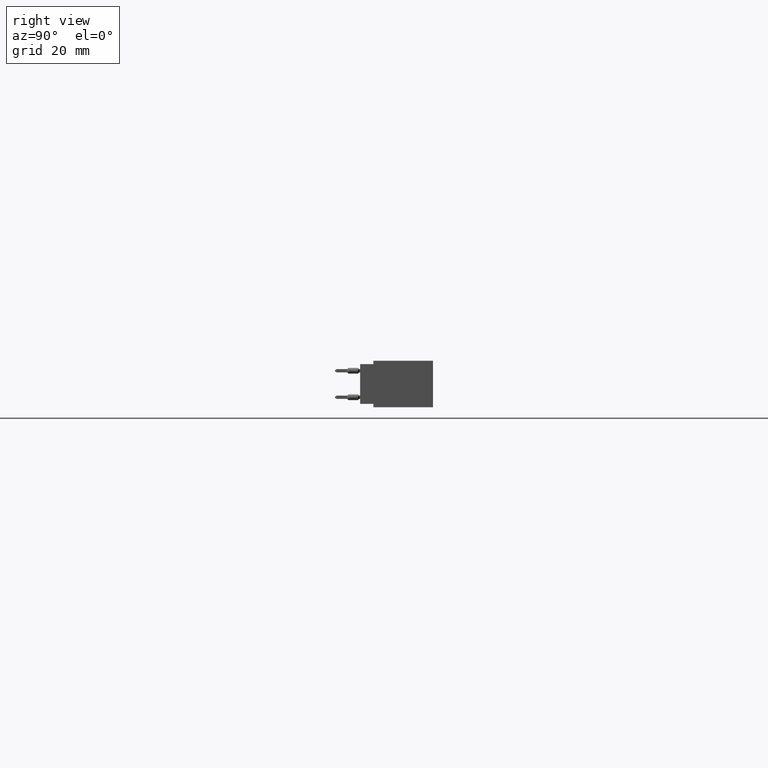
[diagram: clean part render]
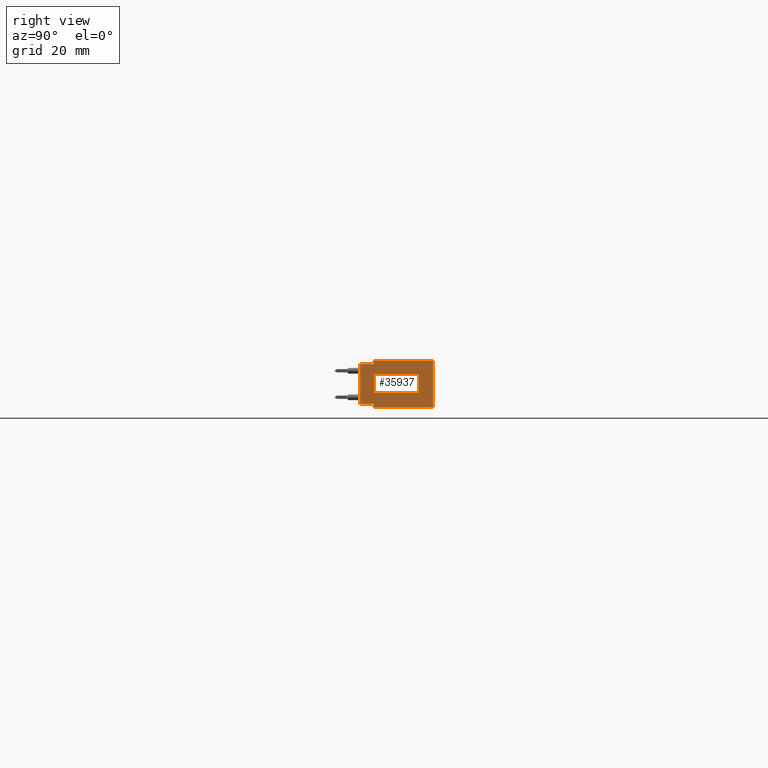
[diagram: same view with one face highlighted and labeled with its STEP entity id]
A machine part, right view. The second image highlights one B-rep face of the part: STEP entity #35937.
In plain terms, the highlighted planar face has unit normal (-1, 0, 0).
Its self-contained STEP definition (entity closure, byte-faithful):
#2228 = VECTOR ( 'NONE', #49773, 39.37007874015748100 ) ;
#3260 = CARTESIAN_POINT ( 'NONE',  ( 5.458000000000000200, 0.5500000000000000400, 0.0000000000000000000 ) ) ;
#3741 = DIRECTION ( 'NONE',  ( 0.0000000000000000000, 0.0000000000000000000, -1.000000000000000000 ) ) ;
#5006 = VECTOR ( 'NONE', #45659, 39.37007874015748100 ) ;
#6967 = CARTESIAN_POINT ( 'NONE',  ( 5.458000000000000200, 0.1000000000000000100, 0.0000000000000000000 ) ) ;
#8471 = DIRECTION ( 'NONE',  ( -0.0000000000000000000, -1.000000000000000000, -0.0000000000000000000 ) ) ;
#8581 = LINE ( 'NONE', #35562, #32461 ) ;
#10054 = VECTOR ( 'NONE', #47044, 39.37007874015748100 ) ;
#12056 = EDGE_CURVE ( 'NONE', #25446, #34185, #52859, .T. ) ;
#12083 = EDGE_LOOP ( 'NONE', ( #47912, #46022, #56467, #18121, #55948, #53301, #19293, #44620 ) ) ;
#13107 = EDGE_CURVE ( 'NONE', #53123, #17345, #22616, .T. ) ;
#14206 = CARTESIAN_POINT ( 'NONE',  ( 5.458000000000000200, 0.1000000000000000100, -0.3499999999999999800 ) ) ;
#14324 = FACE_OUTER_BOUND ( 'NONE', #12083, .T. ) ;
#15917 = CARTESIAN_POINT ( 'NONE',  ( 5.458000000000000200, 0.5500000000000000400, -0.3499999999999999800 ) ) ;
#17345 = VERTEX_POINT ( 'NONE', #33835 ) ;
#18121 = ORIENTED_EDGE ( 'NONE', *, *, #37731, .T. ) ;
#18141 = VECTOR ( 'NONE', #38196, 39.37007874015748100 ) ;
#19105 = VECTOR ( 'NONE', #8471, 39.37007874015748100 ) ;
#19293 = ORIENTED_EDGE ( 'NONE', *, *, #47840, .F. ) ;
#19931 = PLANE ( 'NONE',  #46603 ) ;
#21472 = EDGE_CURVE ( 'NONE', #46829, #53123, #44092, .T. ) ;
#22616 = LINE ( 'NONE', #57095, #19105 ) ;
#23021 = CARTESIAN_POINT ( 'NONE',  ( 5.458000000000000200, 0.1000000000000000100, -0.02500000000000000500 ) ) ;
#25446 = VERTEX_POINT ( 'NONE', #37919 ) ;
#27332 = EDGE_CURVE ( 'NONE', #17345, #37129, #8581, .T. ) ;
#27522 = EDGE_CURVE ( 'NONE', #39097, #34185, #38086, .T. ) ;
#31225 = CARTESIAN_POINT ( 'NONE',  ( 5.458000000000000200, 0.1000000000000000100, -0.3499999999999999800 ) ) ;
#31650 = CARTESIAN_POINT ( 'NONE',  ( 5.458000000000000200, 0.1000000000000000100, 0.0000000000000000000 ) ) ;
#31703 = VECTOR ( 'NONE', #47990, 39.37007874015748100 ) ;
#32461 = VECTOR ( 'NONE', #3741, 39.37007874015748100 ) ;
#32504 = VERTEX_POINT ( 'NONE', #48591 ) ;
#33835 = CARTESIAN_POINT ( 'NONE',  ( 5.458000000000000200, 0.0000000000000000000, -0.02500000000000000500 ) ) ;
#34185 = VERTEX_POINT ( 'NONE', #31225 ) ;
#35562 = CARTESIAN_POINT ( 'NONE',  ( 5.458000000000000200, 0.0000000000000000000, 0.0000000000000000000 ) ) ;
#35574 = CARTESIAN_POINT ( 'NONE',  ( 5.458000000000000200, 0.0000000000000000000, -0.3249999999999999600 ) ) ;
#35937 = ADVANCED_FACE ( 'NONE', ( #14324 ), #19931, .F. ) ;
#36289 = CARTESIAN_POINT ( 'NONE',  ( 5.458000000000000200, 0.5500000000000000400, 0.0000000000000000000 ) ) ;
#37129 = VERTEX_POINT ( 'NONE', #35574 ) ;
#37731 = EDGE_CURVE ( 'NONE', #37129, #39097, #56933, .T. ) ;
#37919 = CARTESIAN_POINT ( 'NONE',  ( 5.458000000000000200, 0.5500000000000000400, -0.3499999999999999800 ) ) ;
#38086 = LINE ( 'NONE', #14206, #48587 ) ;
#38196 = DIRECTION ( 'NONE',  ( 0.0000000000000000000, 0.0000000000000000000, -1.000000000000000000 ) ) ;
#39097 = VERTEX_POINT ( 'NONE', #57268 ) ;
#41342 = CARTESIAN_POINT ( 'NONE',  ( 5.458000000000000200, 0.0000000000000000000, -0.3249999999999999600 ) ) ;
#44092 = LINE ( 'NONE', #6967, #18141 ) ;
#44620 = ORIENTED_EDGE ( 'NONE', *, *, #47464, .T. ) ;
#45516 = DIRECTION ( 'NONE',  ( -0.0000000000000000000, -0.0000000000000000000, -1.000000000000000000 ) ) ;
#45659 = DIRECTION ( 'NONE',  ( 0.0000000000000000000, 1.000000000000000000, 0.0000000000000000000 ) ) ;
#46022 = ORIENTED_EDGE ( 'NONE', *, *, #13107, .T. ) ;
#46603 = AXIS2_PLACEMENT_3D ( 'NONE', #50653, #55532, #55340 ) ;
#46829 = VERTEX_POINT ( 'NONE', #31650 ) ;
#47044 = DIRECTION ( 'NONE',  ( -0.0000000000000000000, -1.000000000000000000, -0.0000000000000000000 ) ) ;
#47464 = EDGE_CURVE ( 'NONE', #32504, #46829, #51380, .T. ) ;
#47840 = EDGE_CURVE ( 'NONE', #32504, #25446, #55523, .T. ) ;
#47912 = ORIENTED_EDGE ( 'NONE', *, *, #21472, .T. ) ;
#47990 = DIRECTION ( 'NONE',  ( 0.0000000000000000000, 0.0000000000000000000, -1.000000000000000000 ) ) ;
#48587 = VECTOR ( 'NONE', #45516, 39.37007874015748100 ) ;
#48591 = CARTESIAN_POINT ( 'NONE',  ( 5.458000000000000200, 0.5500000000000000400, 0.0000000000000000000 ) ) ;
#49773 = DIRECTION ( 'NONE',  ( -0.0000000000000000000, -1.000000000000000000, -0.0000000000000000000 ) ) ;
#50653 = CARTESIAN_POINT ( 'NONE',  ( 5.458000000000000200, 0.5500000000000000400, 0.0000000000000000000 ) ) ;
#51380 = LINE ( 'NONE', #36289, #2228 ) ;
#52859 = LINE ( 'NONE', #15917, #10054 ) ;
#53123 = VERTEX_POINT ( 'NONE', #23021 ) ;
#53301 = ORIENTED_EDGE ( 'NONE', *, *, #12056, .F. ) ;
#55340 = DIRECTION ( 'NONE',  ( 0.0000000000000000000, 0.0000000000000000000, 1.000000000000000000 ) ) ;
#55523 = LINE ( 'NONE', #3260, #31703 ) ;
#55532 = DIRECTION ( 'NONE',  ( -1.000000000000000000, 0.0000000000000000000, 0.0000000000000000000 ) ) ;
#55948 = ORIENTED_EDGE ( 'NONE', *, *, #27522, .T. ) ;
#56467 = ORIENTED_EDGE ( 'NONE', *, *, #27332, .T. ) ;
#56933 = LINE ( 'NONE', #41342, #5006 ) ;
#57095 = CARTESIAN_POINT ( 'NONE',  ( 5.458000000000000200, 0.0000000000000000000, -0.02500000000000000500 ) ) ;
#57268 = CARTESIAN_POINT ( 'NONE',  ( 5.458000000000000200, 0.1000000000000000100, -0.3249999999999999600 ) ) ;